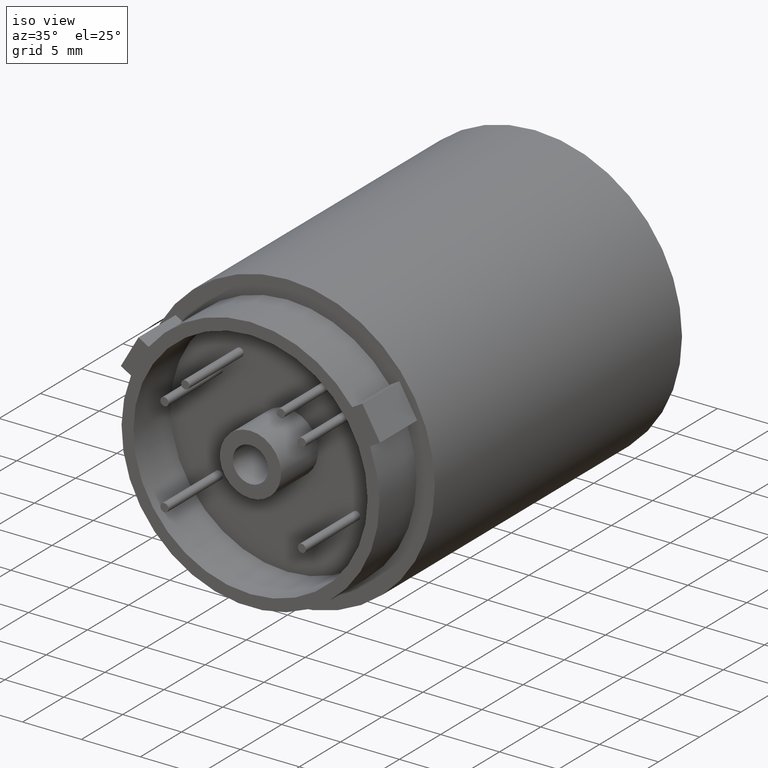
[diagram: clean part render]
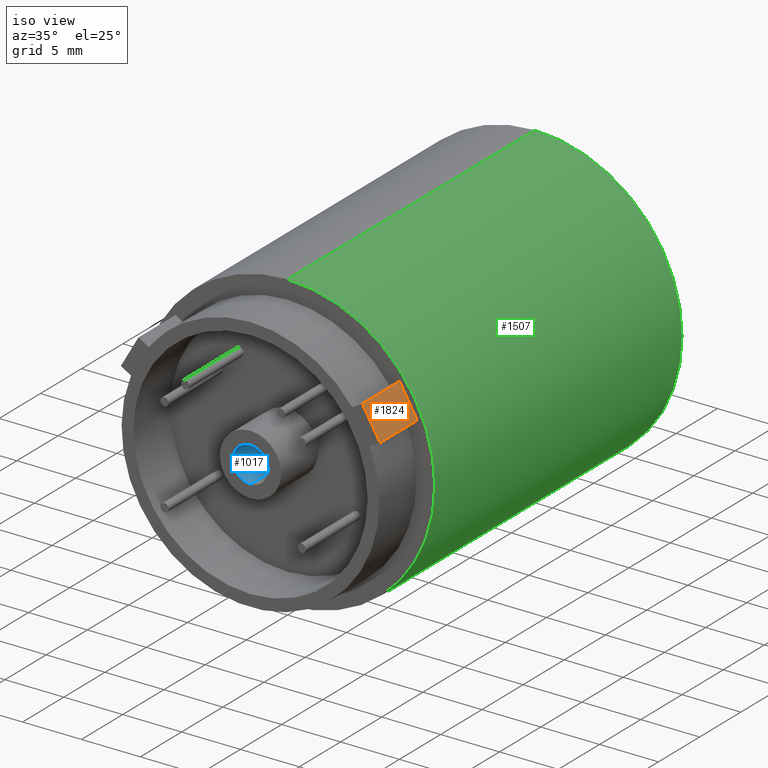
[diagram: same view with three faces highlighted in distinct colors, each labeled with its STEP entity id]
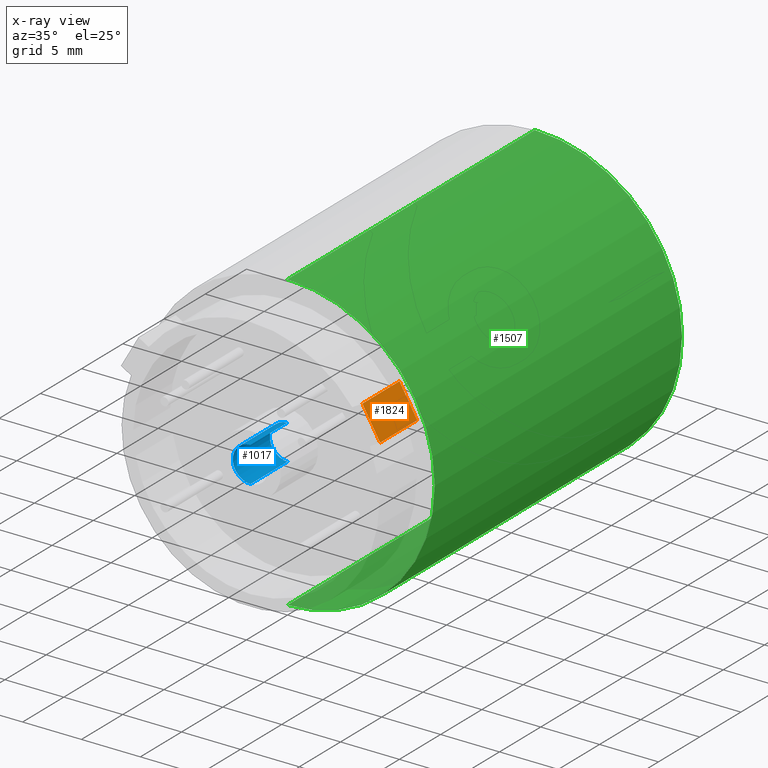
[diagram: x-ray of the same camera — body ghosted, the three highlighted faces saturated]
A machine part, iso view with three faces highlighted in distinct colors.
The next image is the same camera in x-ray (body ghosted, the three faces saturated) — at least one of them is partly hidden behind the body in this view.
Their STEP definitions:

[orange] entity #1824 — the highlighted planar face has unit normal (0.866, 0, 0.5).
#7 = CARTESIAN_POINT ( 'NONE',  ( 9.509606989101069300, -4.500000000000003600, 7.222424962613899900 ) ) ;
#25 = CARTESIAN_POINT ( 'NONE',  ( 9.509606989101069300, 3.898224265317029100, 7.222424962613899900 ) ) ;
#51 = LINE ( 'NONE', #387, #437 ) ;
#97 = VERTEX_POINT ( 'NONE', #1047 ) ;
#107 = ORIENTED_EDGE ( 'NONE', *, *, #711, .T. ) ;
#203 = DIRECTION ( 'NONE',  ( -0.5000000000000089900, 0.0000000000000000000, 0.8660254037844334900 ) ) ;
#265 = VERTEX_POINT ( 'NONE', #7 ) ;
#318 = AXIS2_PLACEMENT_3D ( 'NONE', #334, #1730, #803 ) ;
#334 = CARTESIAN_POINT ( 'NONE',  ( 11.00960698910109800, 3.898224265317029100, 4.624348751260599000 ) ) ;
#387 = CARTESIAN_POINT ( 'NONE',  ( 11.00960698910109800, -4.500000000000003600, 4.624348751260599000 ) ) ;
#394 = FACE_OUTER_BOUND ( 'NONE', #641, .T. ) ;
#437 = VECTOR ( 'NONE', #203, 1000.000000000000000 ) ;
#493 = DIRECTION ( 'NONE',  ( -0.5000000000000089900, 0.0000000000000000000, 0.8660254037844334900 ) ) ;
#502 = EDGE_CURVE ( 'NONE', #1427, #265, #51, .T. ) ;
#524 = CARTESIAN_POINT ( 'NONE',  ( 11.00960698910109800, -4.500000000000003600, 4.624348751260599000 ) ) ;
#559 = CARTESIAN_POINT ( 'NONE',  ( 11.00960698910109800, 3.898224265317029100, 4.624348751260599000 ) ) ;
#581 = CARTESIAN_POINT ( 'NONE',  ( 11.00960698910109800, 0.0000000000000000000, 4.624348751260599000 ) ) ;
#604 = VECTOR ( 'NONE', #1434, 1000.000000000000000 ) ;
#641 = EDGE_LOOP ( 'NONE', ( #1322, #107, #1734, #704 ) ) ;
#646 = PLANE ( 'NONE',  #318 ) ;
#704 = ORIENTED_EDGE ( 'NONE', *, *, #502, .F. ) ;
#711 = EDGE_CURVE ( 'NONE', #779, #97, #1501, .T. ) ;
#775 = CARTESIAN_POINT ( 'NONE',  ( 11.00960698910109800, 0.0000000000000000000, 4.624348751260599000 ) ) ;
#779 = VERTEX_POINT ( 'NONE', #775 ) ;
#803 = DIRECTION ( 'NONE',  ( 0.5000000000000089900, 0.0000000000000000000, -0.8660254037844334900 ) ) ;
#1015 = LINE ( 'NONE', #25, #604 ) ;
#1047 = CARTESIAN_POINT ( 'NONE',  ( 9.509606989101069300, 0.0000000000000000000, 7.222424962613899900 ) ) ;
#1127 = LINE ( 'NONE', #559, #1547 ) ;
#1131 = VECTOR ( 'NONE', #493, 1000.000000000000000 ) ;
#1322 = ORIENTED_EDGE ( 'NONE', *, *, #1347, .F. ) ;
#1347 = EDGE_CURVE ( 'NONE', #779, #1427, #1127, .T. ) ;
#1427 = VERTEX_POINT ( 'NONE', #524 ) ;
#1434 = DIRECTION ( 'NONE',  ( 0.0000000000000000000, -1.000000000000000000, -0.0000000000000000000 ) ) ;
#1501 = LINE ( 'NONE', #581, #1131 ) ;
#1502 = DIRECTION ( 'NONE',  ( 0.0000000000000000000, -1.000000000000000000, -0.0000000000000000000 ) ) ;
#1547 = VECTOR ( 'NONE', #1502, 1000.000000000000000 ) ;
#1730 = DIRECTION ( 'NONE',  ( 0.8660254037844334900, 0.0000000000000000000, 0.5000000000000089900 ) ) ;
#1734 = ORIENTED_EDGE ( 'NONE', *, *, #1864, .T. ) ;
#1824 = ADVANCED_FACE ( 'NONE', ( #394 ), #646, .T. ) ;
#1864 = EDGE_CURVE ( 'NONE', #97, #265, #1015, .T. ) ;

[blue] entity #1017 — the highlighted cylindrical surface (edge-blend (fillet) strip) has radius 1.5 mm, axis along (-0, -1, -0).
#225 = VERTEX_POINT ( 'NONE', #609 ) ;
#242 = EDGE_CURVE ( 'NONE', #225, #325, #1403, .T. ) ;
#297 = CYLINDRICAL_SURFACE ( 'NONE', #1867, 1.500000000000000200 ) ;
#325 = VERTEX_POINT ( 'NONE', #935 ) ;
#346 = DIRECTION ( 'NONE',  ( 0.0000000000000000000, -1.000000000000000000, 0.0000000000000000000 ) ) ;
#369 = VECTOR ( 'NONE', #1980, 1000.000000000000000 ) ;
#420 = ORIENTED_EDGE ( 'NONE', *, *, #1193, .F. ) ;
#521 = CARTESIAN_POINT ( 'NONE',  ( 0.0000000000000000000, 30.00000000000000000, 0.0000000000000000000 ) ) ;
#609 = CARTESIAN_POINT ( 'NONE',  ( 0.0000000000000000000, 0.0000000000000000000, -1.500000000000000200 ) ) ;
#628 = CARTESIAN_POINT ( 'NONE',  ( 1.836970198721030200E-016, -4.500000000000003600, 1.500000000000000200 ) ) ;
#663 = CIRCLE ( 'NONE', #1760, 1.500000000000000200 ) ;
#671 = ORIENTED_EDGE ( 'NONE', *, *, #1081, .T. ) ;
#672 = ORIENTED_EDGE ( 'NONE', *, *, #242, .F. ) ;
#691 = DIRECTION ( 'NONE',  ( -0.0000000000000000000, -1.000000000000000000, -0.0000000000000000000 ) ) ;
#701 = EDGE_LOOP ( 'NONE', ( #420, #1625, #671, #672 ) ) ;
#750 = CIRCLE ( 'NONE', #1100, 1.500000000000000200 ) ;
#811 = FACE_OUTER_BOUND ( 'NONE', #701, .T. ) ;
#848 = DIRECTION ( 'NONE',  ( 0.0000000000000000000, -1.000000000000000000, 0.0000000000000000000 ) ) ;
#935 = CARTESIAN_POINT ( 'NONE',  ( 0.0000000000000000000, -4.500000000000003600, -1.500000000000000200 ) ) ;
#1011 = VERTEX_POINT ( 'NONE', #1463 ) ;
#1017 = ADVANCED_FACE ( 'NONE', ( #811 ), #297, .F. ) ;
#1081 = EDGE_CURVE ( 'NONE', #1792, #325, #663, .T. ) ;
#1093 = DIRECTION ( 'NONE',  ( -0.0000000000000000000, -1.000000000000000000, -0.0000000000000000000 ) ) ;
#1100 = AXIS2_PLACEMENT_3D ( 'NONE', #1769, #848, #1931 ) ;
#1193 = EDGE_CURVE ( 'NONE', #1011, #225, #750, .T. ) ;
#1251 = CARTESIAN_POINT ( 'NONE',  ( 0.0000000000000000000, 30.00000000000000000, -1.500000000000000200 ) ) ;
#1253 = LINE ( 'NONE', #1676, #369 ) ;
#1285 = CARTESIAN_POINT ( 'NONE',  ( 0.0000000000000000000, -4.500000000000003600, 0.0000000000000000000 ) ) ;
#1355 = VECTOR ( 'NONE', #1093, 1000.000000000000000 ) ;
#1403 = LINE ( 'NONE', #1251, #1355 ) ;
#1436 = DIRECTION ( 'NONE',  ( 0.0000000000000000000, 0.0000000000000000000, -1.000000000000000000 ) ) ;
#1463 = CARTESIAN_POINT ( 'NONE',  ( 1.836970198721030200E-016, 0.0000000000000000000, 1.500000000000000200 ) ) ;
#1610 = EDGE_CURVE ( 'NONE', #1011, #1792, #1253, .T. ) ;
#1621 = DIRECTION ( 'NONE',  ( 0.0000000000000000000, 0.0000000000000000000, -1.000000000000000000 ) ) ;
#1625 = ORIENTED_EDGE ( 'NONE', *, *, #1610, .T. ) ;
#1676 = CARTESIAN_POINT ( 'NONE',  ( 1.836970198721030200E-016, 30.00000000000000000, 1.500000000000000200 ) ) ;
#1760 = AXIS2_PLACEMENT_3D ( 'NONE', #1285, #346, #1436 ) ;
#1769 = CARTESIAN_POINT ( 'NONE',  ( 0.0000000000000000000, 0.0000000000000000000, 0.0000000000000000000 ) ) ;
#1792 = VERTEX_POINT ( 'NONE', #628 ) ;
#1867 = AXIS2_PLACEMENT_3D ( 'NONE', #521, #691, #1621 ) ;
#1931 = DIRECTION ( 'NONE',  ( 0.0000000000000000000, 0.0000000000000000000, -1.000000000000000000 ) ) ;
#1980 = DIRECTION ( 'NONE',  ( -0.0000000000000000000, -1.000000000000000000, -0.0000000000000000000 ) ) ;

[green] entity #1507 — the highlighted cylindrical surface (partial cylindrical patch) has radius 12.5 mm, axis along (-0, -1, -0).
#3 = DIRECTION ( 'NONE',  ( -0.0000000000000000000, -1.000000000000000000, -0.0000000000000000000 ) ) ;
#43 = EDGE_CURVE ( 'NONE', #1107, #1995, #416, .T. ) ;
#181 = VECTOR ( 'NONE', #1972, 1000.000000000000000 ) ;
#291 = AXIS2_PLACEMENT_3D ( 'NONE', #1010, #1489, #547 ) ;
#339 = DIRECTION ( 'NONE',  ( 0.0000000000000000000, 1.000000000000000000, 0.0000000000000000000 ) ) ;
#371 = CARTESIAN_POINT ( 'NONE',  ( 0.0000000000000000000, 0.0000000000000000000, -12.50000000000000000 ) ) ;
#416 = LINE ( 'NONE', #853, #181 ) ;
#440 = CARTESIAN_POINT ( 'NONE',  ( 0.0000000000000000000, 0.0000000000000000000, 0.0000000000000000000 ) ) ;
#478 = VERTEX_POINT ( 'NONE', #371 ) ;
#547 = DIRECTION ( 'NONE',  ( 0.0000000000000000000, 0.0000000000000000000, -1.000000000000000000 ) ) ;
#577 = DIRECTION ( 'NONE',  ( 0.0000000000000000000, 0.0000000000000000000, 1.000000000000000000 ) ) ;
#661 = EDGE_CURVE ( 'NONE', #1995, #478, #770, .T. ) ;
#770 = CIRCLE ( 'NONE', #1615, 12.50000000000000000 ) ;
#810 = CARTESIAN_POINT ( 'NONE',  ( 1.530808498934191500E-015, 30.00000000000000000, 12.50000000000000000 ) ) ;
#853 = CARTESIAN_POINT ( 'NONE',  ( 1.530808498934191500E-015, 30.00000000000000000, 12.50000000000000000 ) ) ;
#911 = ORIENTED_EDGE ( 'NONE', *, *, #1826, .F. ) ;
#1010 = CARTESIAN_POINT ( 'NONE',  ( 0.0000000000000000000, 30.00000000000000000, 0.0000000000000000000 ) ) ;
#1074 = CIRCLE ( 'NONE', #1920, 12.50000000000000000 ) ;
#1107 = VERTEX_POINT ( 'NONE', #810 ) ;
#1126 = VECTOR ( 'NONE', #3, 1000.000000000000000 ) ;
#1140 = ORIENTED_EDGE ( 'NONE', *, *, #661, .T. ) ;
#1175 = LINE ( 'NONE', #1573, #1126 ) ;
#1202 = EDGE_LOOP ( 'NONE', ( #911, #1629, #1140, #1541 ) ) ;
#1274 = CARTESIAN_POINT ( 'NONE',  ( 0.0000000000000000000, 30.00000000000000000, 0.0000000000000000000 ) ) ;
#1301 = CYLINDRICAL_SURFACE ( 'NONE', #291, 12.50000000000000000 ) ;
#1349 = FACE_OUTER_BOUND ( 'NONE', #1202, .T. ) ;
#1429 = DIRECTION ( 'NONE',  ( 0.0000000000000000000, 0.0000000000000000000, 1.000000000000000000 ) ) ;
#1444 = CARTESIAN_POINT ( 'NONE',  ( 0.0000000000000000000, 30.00000000000000000, -12.50000000000000000 ) ) ;
#1489 = DIRECTION ( 'NONE',  ( -0.0000000000000000000, -1.000000000000000000, -0.0000000000000000000 ) ) ;
#1504 = CARTESIAN_POINT ( 'NONE',  ( 1.530808498934191500E-015, 0.0000000000000000000, 12.50000000000000000 ) ) ;
#1507 = ADVANCED_FACE ( 'NONE', ( #1349 ), #1301, .T. ) ;
#1523 = DIRECTION ( 'NONE',  ( 0.0000000000000000000, 1.000000000000000000, 0.0000000000000000000 ) ) ;
#1541 = ORIENTED_EDGE ( 'NONE', *, *, #1793, .F. ) ;
#1573 = CARTESIAN_POINT ( 'NONE',  ( 0.0000000000000000000, 30.00000000000000000, -12.50000000000000000 ) ) ;
#1615 = AXIS2_PLACEMENT_3D ( 'NONE', #440, #1523, #577 ) ;
#1629 = ORIENTED_EDGE ( 'NONE', *, *, #43, .T. ) ;
#1793 = EDGE_CURVE ( 'NONE', #1921, #478, #1175, .T. ) ;
#1826 = EDGE_CURVE ( 'NONE', #1107, #1921, #1074, .T. ) ;
#1920 = AXIS2_PLACEMENT_3D ( 'NONE', #1274, #339, #1429 ) ;
#1921 = VERTEX_POINT ( 'NONE', #1444 ) ;
#1972 = DIRECTION ( 'NONE',  ( -0.0000000000000000000, -1.000000000000000000, -0.0000000000000000000 ) ) ;
#1995 = VERTEX_POINT ( 'NONE', #1504 ) ;